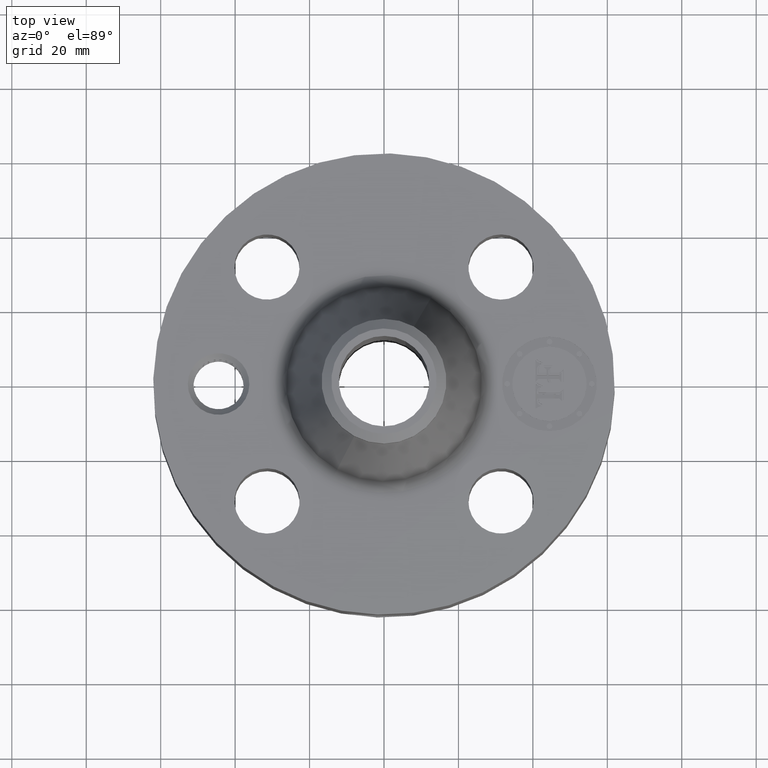
[diagram: clean part render]
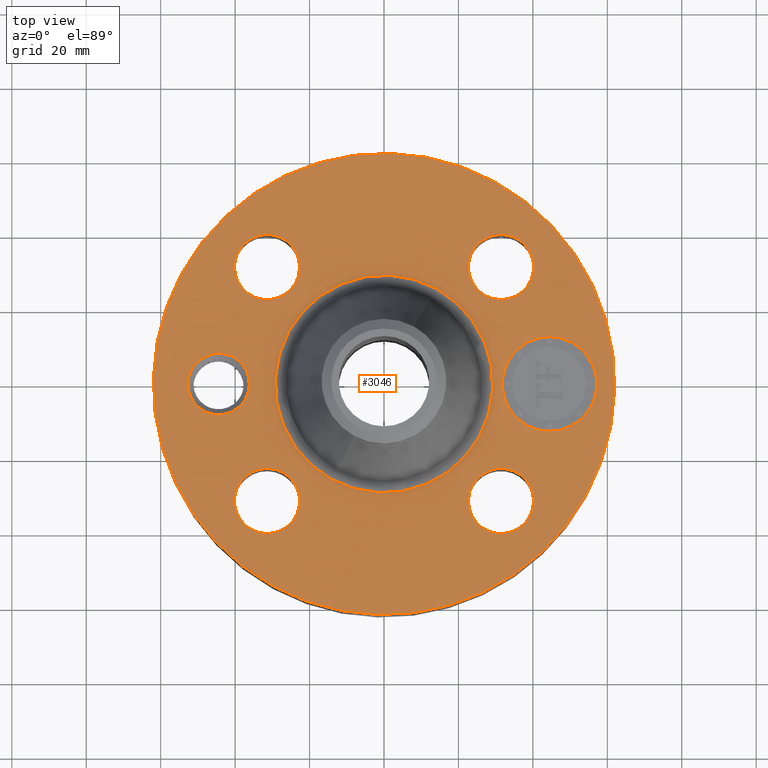
[diagram: same view with one face highlighted and labeled with its STEP entity id]
A machine part, top view. The second image highlights one B-rep face of the part: STEP entity #3046.
In plain terms, the highlighted planar face has unit normal (0, 0, -1).
Its self-contained STEP definition (entity closure, byte-faithful):
#2190=AXIS2_PLACEMENT_3D('Circle Axis2P3D',#2188,#2189,$) ;
#2216=AXIS2_PLACEMENT_3D('Circle Axis2P3D',#2214,#2215,$) ;
#2914=AXIS2_PLACEMENT_3D('Plane Axis2P3D',#2911,#2912,#2913) ;
#2918=AXIS2_PLACEMENT_3D('Circle Axis2P3D',#2916,#2917,$) ;
#2927=AXIS2_PLACEMENT_3D('Circle Axis2P3D',#2925,#2926,$) ;
#2936=AXIS2_PLACEMENT_3D('Circle Axis2P3D',#2934,#2935,$) ;
#2945=AXIS2_PLACEMENT_3D('Circle Axis2P3D',#2943,#2944,$) ;
#2954=AXIS2_PLACEMENT_3D('Circle Axis2P3D',#2952,#2953,$) ;
#2963=AXIS2_PLACEMENT_3D('Circle Axis2P3D',#2961,#2962,$) ;
#2976=AXIS2_PLACEMENT_3D('Circle Axis2P3D',#2974,#2975,$) ;
#2985=AXIS2_PLACEMENT_3D('Circle Axis2P3D',#2983,#2984,$) ;
#2994=AXIS2_PLACEMENT_3D('Circle Axis2P3D',#2992,#2993,$) ;
#3003=AXIS2_PLACEMENT_3D('Circle Axis2P3D',#3001,#3002,$) ;
#3012=AXIS2_PLACEMENT_3D('Circle Axis2P3D',#3010,#3011,$) ;
#3021=AXIS2_PLACEMENT_3D('Circle Axis2P3D',#3019,#3020,$) ;
#3030=AXIS2_PLACEMENT_3D('Circle Axis2P3D',#3028,#3029,$) ;
#3039=AXIS2_PLACEMENT_3D('Circle Axis2P3D',#3037,#3038,$) ;
#2188=CARTESIAN_POINT('Axis2P3D Location',(0.,0.,1.75000000001)) ;
#2192=CARTESIAN_POINT('Vertex',(-0.551878272916,-1.01020640245,1.75000000001)) ;
#2194=CARTESIAN_POINT('Vertex',(0.551878272916,1.01020640245,1.75000000001)) ;
#2214=CARTESIAN_POINT('Axis2P3D Location',(0.,0.,1.75000000001)) ;
#2911=CARTESIAN_POINT('Axis2P3D Location',(0.,2.44000000001,1.75000000001)) ;
#2916=CARTESIAN_POINT('Axis2P3D Location',(0.,0.,1.75000000001)) ;
#2920=CARTESIAN_POINT('Vertex',(1.1697983142,2.14130145102,1.75000000001)) ;
#2922=CARTESIAN_POINT('Vertex',(-1.1697983142,-2.14130145102,1.75000000001)) ;
#2925=CARTESIAN_POINT('Axis2P3D Location',(0.,0.,1.75000000001)) ;
#2934=CARTESIAN_POINT('Axis2P3D Location',(-1.75000000001,0.,1.75000000001)) ;
#2938=CARTESIAN_POINT('Vertex',(-2.03576282172,0.156112941009,1.75000000001)) ;
#2940=CARTESIAN_POINT('Vertex',(-1.46423717829,-0.156112941009,1.75000000001)) ;
#2943=CARTESIAN_POINT('Axis2P3D Location',(-1.75000000001,0.,1.75000000001)) ;
#2952=CARTESIAN_POINT('Axis2P3D Location',(1.23743686708,-1.23743686708,1.75000000001)) ;
#2956=CARTESIAN_POINT('Vertex',(0.934670883228,-1.07203505626,1.75000000001)) ;
#2958=CARTESIAN_POINT('Vertex',(1.54020285093,-1.4028386779,1.75000000001)) ;
#2961=CARTESIAN_POINT('Axis2P3D Location',(1.23743686708,-1.23743686708,1.75000000001)) ;
#2974=CARTESIAN_POINT('Axis2P3D Location',(-1.23743686708,-1.23743686708,1.75000000001)) ;
#2978=CARTESIAN_POINT('Vertex',(-1.4028386779,-1.54020285093,1.75000000001)) ;
#2980=CARTESIAN_POINT('Vertex',(-1.07203505626,-0.934670883228,1.75000000001)) ;
#2983=CARTESIAN_POINT('Axis2P3D Location',(-1.23743686708,-1.23743686708,1.75000000001)) ;
#2992=CARTESIAN_POINT('Axis2P3D Location',(-1.23743686708,1.23743686708,1.75000000001)) ;
#2996=CARTESIAN_POINT('Vertex',(-1.54020285093,1.4028386779,1.75000000001)) ;
#2998=CARTESIAN_POINT('Vertex',(-0.934670883228,1.07203505626,1.75000000001)) ;
#3001=CARTESIAN_POINT('Axis2P3D Location',(-1.23743686708,1.23743686708,1.75000000001)) ;
#3010=CARTESIAN_POINT('Axis2P3D Location',(1.23743686708,1.23743686708,1.75000000001)) ;
#3014=CARTESIAN_POINT('Vertex',(1.4028386779,1.54020285093,1.75000000001)) ;
#3016=CARTESIAN_POINT('Vertex',(1.07203505626,0.934670883228,1.75000000001)) ;
#3019=CARTESIAN_POINT('Axis2P3D Location',(1.23743686708,1.23743686708,1.75000000001)) ;
#3028=CARTESIAN_POINT('Axis2P3D Location',(1.75000000001,-4.19611851827E-015,1.75000000001)) ;
#3032=CARTESIAN_POINT('Vertex',(1.75000000001,0.499999995002,1.75000000001)) ;
#3034=CARTESIAN_POINT('Vertex',(1.75000000001,-0.499999995002,1.75000000001)) ;
#3037=CARTESIAN_POINT('Axis2P3D Location',(1.75000000001,-4.47585975282E-015,1.75000000001)) ;
#2189=DIRECTION('Axis2P3D Direction',(0.,0.,-0.0393700787402)) ;
#2215=DIRECTION('Axis2P3D Direction',(0.,0.,-0.0393700787402)) ;
#2912=DIRECTION('Axis2P3D Direction',(0.,0.,-0.0393700787402)) ;
#2913=DIRECTION('Axis2P3D XDirection',(0.0393700787402,0.,0.)) ;
#2917=DIRECTION('Axis2P3D Direction',(0.,0.,-0.0393700787402)) ;
#2926=DIRECTION('Axis2P3D Direction',(0.,0.,-0.0393700787402)) ;
#2935=DIRECTION('Axis2P3D Direction',(0.,0.,-0.0393700787402)) ;
#2944=DIRECTION('Axis2P3D Direction',(0.,0.,-0.0393700787402)) ;
#2953=DIRECTION('Axis2P3D Direction',(0.,0.,-0.0393700787402)) ;
#2962=DIRECTION('Axis2P3D Direction',(0.,0.,-0.0393700787402)) ;
#2975=DIRECTION('Axis2P3D Direction',(0.,0.,-0.0393700787402)) ;
#2984=DIRECTION('Axis2P3D Direction',(0.,0.,-0.0393700787402)) ;
#2993=DIRECTION('Axis2P3D Direction',(0.,0.,-0.0393700787402)) ;
#3002=DIRECTION('Axis2P3D Direction',(0.,0.,-0.0393700787402)) ;
#3011=DIRECTION('Axis2P3D Direction',(0.,0.,-0.0393700787402)) ;
#3020=DIRECTION('Axis2P3D Direction',(0.,0.,-0.0393700787402)) ;
#3029=DIRECTION('Axis2P3D Direction',(0.,0.,-0.0393700787402)) ;
#3038=DIRECTION('Axis2P3D Direction',(0.,0.,-0.0393700787402)) ;
#2931=ORIENTED_EDGE('',*,*,#2924,.F.) ;
#2932=ORIENTED_EDGE('',*,*,#2929,.F.) ;
#2949=ORIENTED_EDGE('',*,*,#2942,.T.) ;
#2950=ORIENTED_EDGE('',*,*,#2947,.T.) ;
#2967=ORIENTED_EDGE('',*,*,#2960,.T.) ;
#2968=ORIENTED_EDGE('',*,*,#2965,.T.) ;
#2971=ORIENTED_EDGE('',*,*,#2196,.T.) ;
#2972=ORIENTED_EDGE('',*,*,#2218,.T.) ;
#2989=ORIENTED_EDGE('',*,*,#2982,.T.) ;
#2990=ORIENTED_EDGE('',*,*,#2987,.T.) ;
#3007=ORIENTED_EDGE('',*,*,#3000,.T.) ;
#3008=ORIENTED_EDGE('',*,*,#3005,.T.) ;
#3025=ORIENTED_EDGE('',*,*,#3018,.T.) ;
#3026=ORIENTED_EDGE('',*,*,#3023,.T.) ;
#3043=ORIENTED_EDGE('',*,*,#3036,.T.) ;
#3044=ORIENTED_EDGE('',*,*,#3041,.T.) ;
#2951=FACE_BOUND('',#2948,.T.) ;
#2969=FACE_BOUND('',#2966,.T.) ;
#2973=FACE_BOUND('',#2970,.T.) ;
#2991=FACE_BOUND('',#2988,.T.) ;
#3009=FACE_BOUND('',#3006,.T.) ;
#3027=FACE_BOUND('',#3024,.T.) ;
#3045=FACE_BOUND('',#3042,.T.) ;
#3046=ADVANCED_FACE('PartBody',(#2933,#2951,#2969,#2973,#2991,#3009,#3027,#3045),#2915,.F.) ;
#2191=CIRCLE('generated circle',#2190,1.15112406094) ;
#2217=CIRCLE('generated circle',#2216,1.15112406094) ;
#2919=CIRCLE('generated circle',#2918,2.44000000001) ;
#2928=CIRCLE('generated circle',#2927,2.44000000001) ;
#2937=CIRCLE('generated circle',#2936,0.325625000001) ;
#2946=CIRCLE('generated circle',#2945,0.325625000001) ;
#2955=CIRCLE('generated circle',#2954,0.345000000001) ;
#2964=CIRCLE('generated circle',#2963,0.345000000001) ;
#2977=CIRCLE('generated circle',#2976,0.345000000001) ;
#2986=CIRCLE('generated circle',#2985,0.345000000001) ;
#2995=CIRCLE('generated circle',#2994,0.345000000001) ;
#3004=CIRCLE('generated circle',#3003,0.345000000001) ;
#3013=CIRCLE('generated circle',#3012,0.345000000001) ;
#3022=CIRCLE('generated circle',#3021,0.345000000001) ;
#3031=CIRCLE('generated circle',#3030,0.499999995002) ;
#3040=CIRCLE('generated circle',#3039,0.499999995002) ;
#2196=EDGE_CURVE('',#2193,#2195,#2191,.T.) ;
#2218=EDGE_CURVE('',#2195,#2193,#2217,.T.) ;
#2924=EDGE_CURVE('',#2921,#2923,#2919,.T.) ;
#2929=EDGE_CURVE('',#2923,#2921,#2928,.T.) ;
#2942=EDGE_CURVE('',#2939,#2941,#2937,.T.) ;
#2947=EDGE_CURVE('',#2941,#2939,#2946,.T.) ;
#2960=EDGE_CURVE('',#2957,#2959,#2955,.T.) ;
#2965=EDGE_CURVE('',#2959,#2957,#2964,.T.) ;
#2982=EDGE_CURVE('',#2979,#2981,#2977,.T.) ;
#2987=EDGE_CURVE('',#2981,#2979,#2986,.T.) ;
#3000=EDGE_CURVE('',#2997,#2999,#2995,.T.) ;
#3005=EDGE_CURVE('',#2999,#2997,#3004,.T.) ;
#3018=EDGE_CURVE('',#3015,#3017,#3013,.T.) ;
#3023=EDGE_CURVE('',#3017,#3015,#3022,.T.) ;
#3036=EDGE_CURVE('',#3033,#3035,#3031,.T.) ;
#3041=EDGE_CURVE('',#3035,#3033,#3040,.T.) ;
#2930=EDGE_LOOP('',(#2931,#2932)) ;
#2948=EDGE_LOOP('',(#2949,#2950)) ;
#2966=EDGE_LOOP('',(#2967,#2968)) ;
#2970=EDGE_LOOP('',(#2971,#2972)) ;
#2988=EDGE_LOOP('',(#2989,#2990)) ;
#3006=EDGE_LOOP('',(#3007,#3008)) ;
#3024=EDGE_LOOP('',(#3025,#3026)) ;
#3042=EDGE_LOOP('',(#3043,#3044)) ;
#2933=FACE_OUTER_BOUND('',#2930,.T.) ;
#2915=PLANE('',#2914) ;
#2193=VERTEX_POINT('',#2192) ;
#2195=VERTEX_POINT('',#2194) ;
#2921=VERTEX_POINT('',#2920) ;
#2923=VERTEX_POINT('',#2922) ;
#2939=VERTEX_POINT('',#2938) ;
#2941=VERTEX_POINT('',#2940) ;
#2957=VERTEX_POINT('',#2956) ;
#2959=VERTEX_POINT('',#2958) ;
#2979=VERTEX_POINT('',#2978) ;
#2981=VERTEX_POINT('',#2980) ;
#2997=VERTEX_POINT('',#2996) ;
#2999=VERTEX_POINT('',#2998) ;
#3015=VERTEX_POINT('',#3014) ;
#3017=VERTEX_POINT('',#3016) ;
#3033=VERTEX_POINT('',#3032) ;
#3035=VERTEX_POINT('',#3034) ;